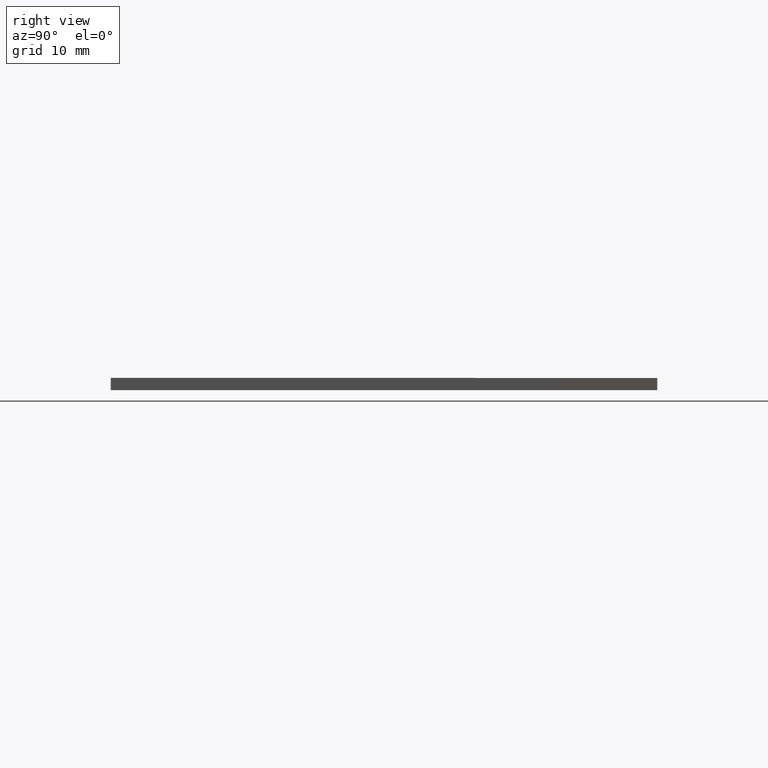
[diagram: clean part render]
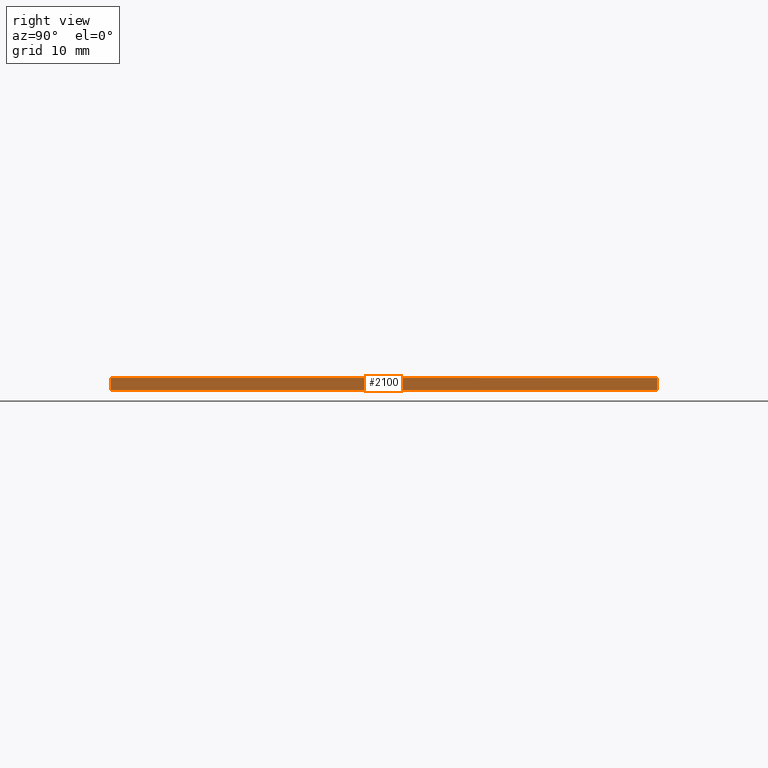
[diagram: same view with one face highlighted and labeled with its STEP entity id]
A machine part, right view. The second image highlights one B-rep face of the part: STEP entity #2100.
In plain terms, the highlighted planar face has unit normal (1, 0, -0).
Its self-contained STEP definition (entity closure, byte-faithful):
#7 = DIRECTION ( 'NONE',  ( 1.000000000000000000, 1.541976423090495600E-016, -0.0000000000000000000 ) ) ;
#22 = CARTESIAN_POINT ( 'NONE',  ( 20.00000000000000400, 30.00000000000000000, 0.5000000000000000000 ) ) ;
#392 = EDGE_CURVE ( 'NONE', #1207, #7446, #5550, .T. ) ;
#433 = DIRECTION ( 'NONE',  ( -2.312964634635743000E-016, 1.000000000000000000, -0.0000000000000000000 ) ) ;
#1207 = VERTEX_POINT ( 'NONE', #3776 ) ;
#1617 = CARTESIAN_POINT ( 'NONE',  ( 20.00000000000001100, -15.00000000000000000, 0.5000000000000000000 ) ) ;
#1710 = EDGE_CURVE ( 'NONE', #6489, #3667, #3708, .T. ) ;
#2100 = ADVANCED_FACE ( 'NONE', ( #4721 ), #2149, .T. ) ;
#2108 = ORIENTED_EDGE ( 'NONE', *, *, #6822, .F. ) ;
#2121 = DIRECTION ( 'NONE',  ( -1.541976423090495600E-016, 1.000000000000000000, 0.0000000000000000000 ) ) ;
#2149 = PLANE ( 'NONE',  #7134 ) ;
#2354 = CARTESIAN_POINT ( 'NONE',  ( 20.00000000000001100, -15.00000000000000000, -0.5000000000000000000 ) ) ;
#2399 = CARTESIAN_POINT ( 'NONE',  ( 20.00000000000000400, 15.00000000000000000, 0.4950000000000000000 ) ) ;
#2792 = VECTOR ( 'NONE', #3263, 1000.000000000000000 ) ;
#2958 = LINE ( 'NONE', #6830, #3397 ) ;
#2977 = VERTEX_POINT ( 'NONE', #3246 ) ;
#3057 = VECTOR ( 'NONE', #4911, 1000.000000000000000 ) ;
#3246 = CARTESIAN_POINT ( 'NONE',  ( 20.00000000000000000, 30.00000000000000000, 0.4950000000000000000 ) ) ;
#3263 = DIRECTION ( 'NONE',  ( -0.0000000000000000000, -0.0000000000000000000, -1.000000000000000000 ) ) ;
#3397 = VECTOR ( 'NONE', #5374, 1000.000000000000000 ) ;
#3667 = VERTEX_POINT ( 'NONE', #7018 ) ;
#3708 = LINE ( 'NONE', #2399, #8410 ) ;
#3776 = CARTESIAN_POINT ( 'NONE',  ( 20.00000000000000400, 30.00000000000000000, -0.5000000000000000000 ) ) ;
#4003 = CARTESIAN_POINT ( 'NONE',  ( 20.00000000000000400, 30.00000000000000000, -0.5000000000000000000 ) ) ;
#4161 = EDGE_LOOP ( 'NONE', ( #6025, #4555, #6580, #4284, #2108, #6461 ) ) ;
#4284 = ORIENTED_EDGE ( 'NONE', *, *, #392, .F. ) ;
#4555 = ORIENTED_EDGE ( 'NONE', *, *, #8454, .T. ) ;
#4721 = FACE_OUTER_BOUND ( 'NONE', #4161, .T. ) ;
#4869 = VECTOR ( 'NONE', #8872, 1000.000000000000000 ) ;
#4911 = DIRECTION ( 'NONE',  ( 1.541976423090495400E-016, -1.000000000000000000, 0.0000000000000000000 ) ) ;
#5117 = DIRECTION ( 'NONE',  ( -0.0000000000000000000, -0.0000000000000000000, 1.000000000000000000 ) ) ;
#5315 = LINE ( 'NONE', #6698, #2792 ) ;
#5374 = DIRECTION ( 'NONE',  ( -0.0000000000000000000, -0.0000000000000000000, -1.000000000000000000 ) ) ;
#5550 = LINE ( 'NONE', #4003, #4869 ) ;
#5627 = CARTESIAN_POINT ( 'NONE',  ( 20.00000000000000400, 30.00000000000000000, 0.5000000000000000000 ) ) ;
#5698 = CARTESIAN_POINT ( 'NONE',  ( 20.00000000000000400, 15.00000000000000000, 0.4950000000000000000 ) ) ;
#6025 = ORIENTED_EDGE ( 'NONE', *, *, #1710, .T. ) ;
#6461 = ORIENTED_EDGE ( 'NONE', *, *, #9066, .F. ) ;
#6489 = VERTEX_POINT ( 'NONE', #5698 ) ;
#6580 = ORIENTED_EDGE ( 'NONE', *, *, #7907, .T. ) ;
#6667 = VECTOR ( 'NONE', #433, 1000.000000000000000 ) ;
#6698 = CARTESIAN_POINT ( 'NONE',  ( 20.00000000000000400, 30.00000000000000000, 0.5000000000000000000 ) ) ;
#6822 = EDGE_CURVE ( 'NONE', #2977, #1207, #5315, .T. ) ;
#6830 = CARTESIAN_POINT ( 'NONE',  ( 20.00000000000001100, -15.00000000000000000, 0.5000000000000000000 ) ) ;
#6892 = LINE ( 'NONE', #7238, #6667 ) ;
#7018 = CARTESIAN_POINT ( 'NONE',  ( 20.00000000000000400, 15.00000000000000000, 0.5000000000000000000 ) ) ;
#7134 = AXIS2_PLACEMENT_3D ( 'NONE', #5627, #7, #2121 ) ;
#7238 = CARTESIAN_POINT ( 'NONE',  ( 20.00000000000000000, 30.00000000000000000, 0.4950000000000000000 ) ) ;
#7446 = VERTEX_POINT ( 'NONE', #2354 ) ;
#7503 = VERTEX_POINT ( 'NONE', #1617 ) ;
#7907 = EDGE_CURVE ( 'NONE', #7503, #7446, #2958, .T. ) ;
#8304 = LINE ( 'NONE', #22, #3057 ) ;
#8410 = VECTOR ( 'NONE', #5117, 1000.000000000000000 ) ;
#8454 = EDGE_CURVE ( 'NONE', #3667, #7503, #8304, .T. ) ;
#8872 = DIRECTION ( 'NONE',  ( 1.541976423090495400E-016, -1.000000000000000000, 0.0000000000000000000 ) ) ;
#9066 = EDGE_CURVE ( 'NONE', #6489, #2977, #6892, .T. ) ;